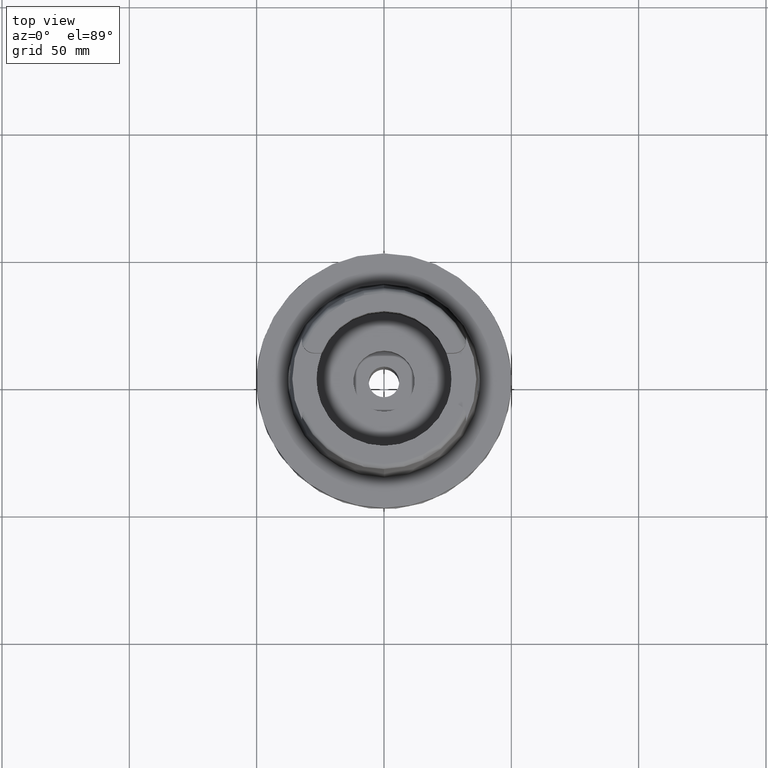
[diagram: clean part render]
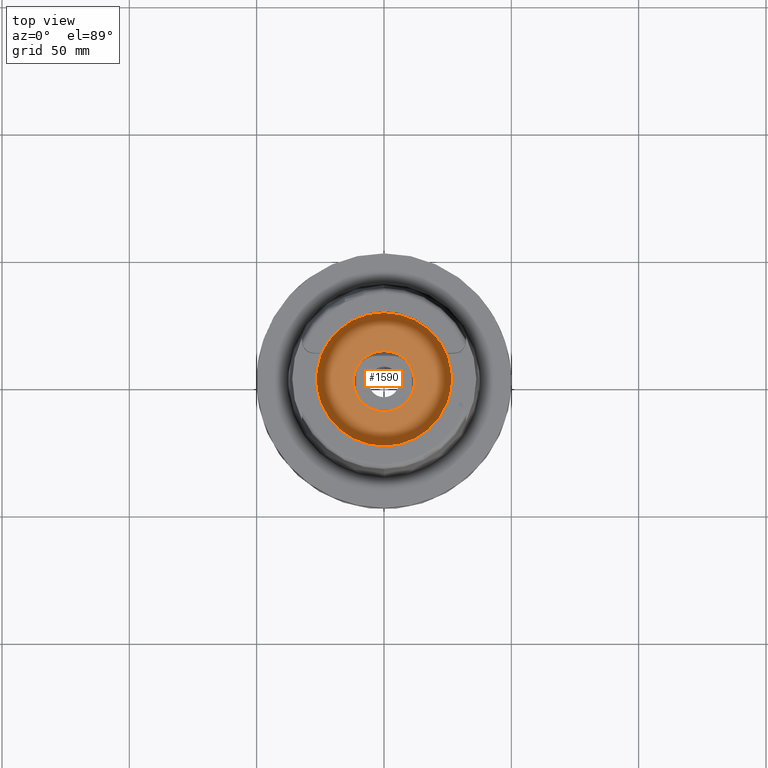
[diagram: same view with one face highlighted and labeled with its STEP entity id]
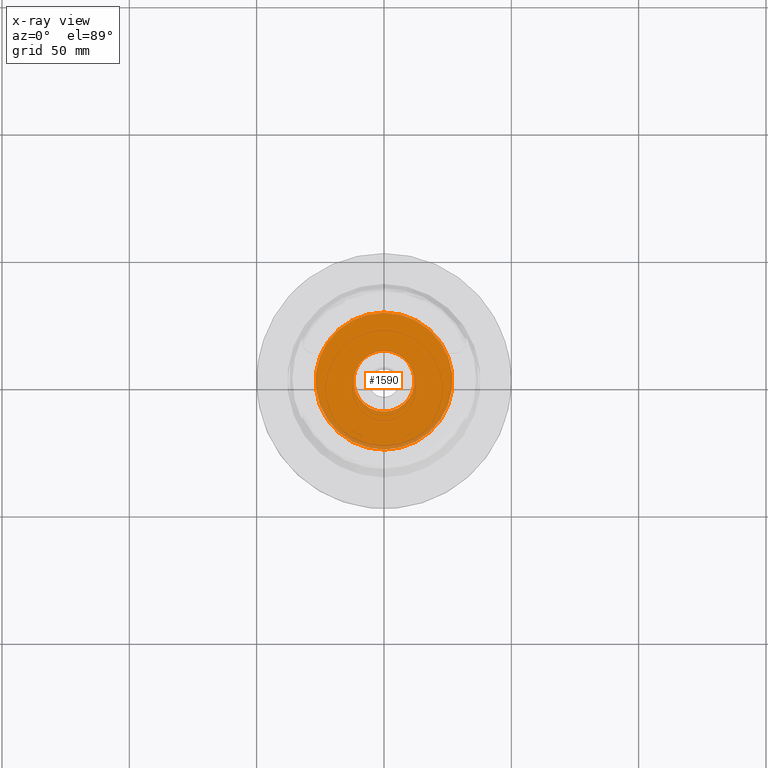
[diagram: x-ray of the same camera — body ghosted, the highlighted face saturated]
A machine part, top view. The second image highlights one B-rep face of the part: STEP entity #1590.
The next image is the same camera in x-ray: the body ghosted, the highlighted face saturated — about 5% of this face is hidden behind the body in this view.
In plain terms, the highlighted planar face has unit normal (0, 0, 1).
Its self-contained STEP definition (entity closure, byte-faithful):
#94 = AXIS2_PLACEMENT_3D ( 'NONE', #5042, #2284, #5572 ) ;
#188 = CIRCLE ( 'NONE', #94, 26.89999999999999858 ) ;
#426 = ORIENTED_EDGE ( 'NONE', *, *, #3752, .F. ) ;
#708 = ORIENTED_EDGE ( 'NONE', *, *, #1619, .F. ) ;
#752 = AXIS2_PLACEMENT_3D ( 'NONE', #5711, #1854, #1940 ) ;
#782 = VERTEX_POINT ( 'NONE', #1457 ) ;
#1165 = AXIS2_PLACEMENT_3D ( 'NONE', #5469, #2645, #4115 ) ;
#1178 = DIRECTION ( 'NONE',  ( 0.0000000000000000000, -1.000000000000000000, 0.0000000000000000000 ) ) ;
#1369 = EDGE_CURVE ( 'NONE', #4970, #782, #188, .T. ) ;
#1457 = CARTESIAN_POINT ( 'NONE',  ( 0.0000000000000000000, 26.89999999999999858, -12.44999999999999929 ) ) ;
#1590 = ADVANCED_FACE ( 'NONE', ( #5995, #3589 ), #4642, .T. ) ;
#1619 = EDGE_CURVE ( 'NONE', #782, #4970, #3054, .T. ) ;
#1664 = CARTESIAN_POINT ( 'NONE',  ( 0.0000000000000000000, 12.00000000000000000, -12.44999999999999929 ) ) ;
#1755 = DIRECTION ( 'NONE',  ( 0.0000000000000000000, 0.0000000000000000000, 1.000000000000000000 ) ) ;
#1854 = DIRECTION ( 'NONE',  ( 0.0000000000000000000, 0.0000000000000000000, 1.000000000000000000 ) ) ;
#1940 = DIRECTION ( 'NONE',  ( 0.0000000000000000000, 1.000000000000000000, 0.0000000000000000000 ) ) ;
#2213 = CARTESIAN_POINT ( 'NONE',  ( 0.0000000000000000000, 0.0000000000000000000, -12.44999999999999929 ) ) ;
#2262 = AXIS2_PLACEMENT_3D ( 'NONE', #2213, #3651, #3190 ) ;
#2284 = DIRECTION ( 'NONE',  ( 0.0000000000000000000, 0.0000000000000000000, -1.000000000000000000 ) ) ;
#2421 = EDGE_LOOP ( 'NONE', ( #3404, #426 ) ) ;
#2434 = CIRCLE ( 'NONE', #752, 12.00000000000000000 ) ;
#2463 = CARTESIAN_POINT ( 'NONE',  ( 0.0000000000000000000, -26.89999999999999858, -12.44999999999999929 ) ) ;
#2645 = DIRECTION ( 'NONE',  ( 0.0000000000000000000, 0.0000000000000000000, -1.000000000000000000 ) ) ;
#2768 = AXIS2_PLACEMENT_3D ( 'NONE', #4131, #1755, #1178 ) ;
#3054 = CIRCLE ( 'NONE', #1165, 26.89999999999999858 ) ;
#3190 = DIRECTION ( 'NONE',  ( 1.000000000000000000, 0.0000000000000000000, 0.0000000000000000000 ) ) ;
#3278 = CIRCLE ( 'NONE', #2768, 12.00000000000000000 ) ;
#3404 = ORIENTED_EDGE ( 'NONE', *, *, #5573, .F. ) ;
#3589 = FACE_BOUND ( 'NONE', #2421, .T. ) ;
#3651 = DIRECTION ( 'NONE',  ( 0.0000000000000000000, 0.0000000000000000000, 1.000000000000000000 ) ) ;
#3752 = EDGE_CURVE ( 'NONE', #4024, #4105, #3278, .T. ) ;
#4024 = VERTEX_POINT ( 'NONE', #5734 ) ;
#4105 = VERTEX_POINT ( 'NONE', #1664 ) ;
#4115 = DIRECTION ( 'NONE',  ( 0.0000000000000000000, 1.000000000000000000, 0.0000000000000000000 ) ) ;
#4131 = CARTESIAN_POINT ( 'NONE',  ( 0.0000000000000000000, 0.0000000000000000000, -12.44999999999999929 ) ) ;
#4528 = EDGE_LOOP ( 'NONE', ( #708, #5574 ) ) ;
#4642 = PLANE ( 'NONE',  #2262 ) ;
#4970 = VERTEX_POINT ( 'NONE', #2463 ) ;
#5042 = CARTESIAN_POINT ( 'NONE',  ( 0.0000000000000000000, 0.0000000000000000000, -12.44999999999999929 ) ) ;
#5469 = CARTESIAN_POINT ( 'NONE',  ( 0.0000000000000000000, 0.0000000000000000000, -12.44999999999999929 ) ) ;
#5572 = DIRECTION ( 'NONE',  ( 0.0000000000000000000, -1.000000000000000000, 0.0000000000000000000 ) ) ;
#5573 = EDGE_CURVE ( 'NONE', #4105, #4024, #2434, .T. ) ;
#5574 = ORIENTED_EDGE ( 'NONE', *, *, #1369, .F. ) ;
#5711 = CARTESIAN_POINT ( 'NONE',  ( 0.0000000000000000000, 0.0000000000000000000, -12.44999999999999929 ) ) ;
#5734 = CARTESIAN_POINT ( 'NONE',  ( 0.0000000000000000000, -12.00000000000000000, -12.44999999999999929 ) ) ;
#5995 = FACE_OUTER_BOUND ( 'NONE', #4528, .T. ) ;